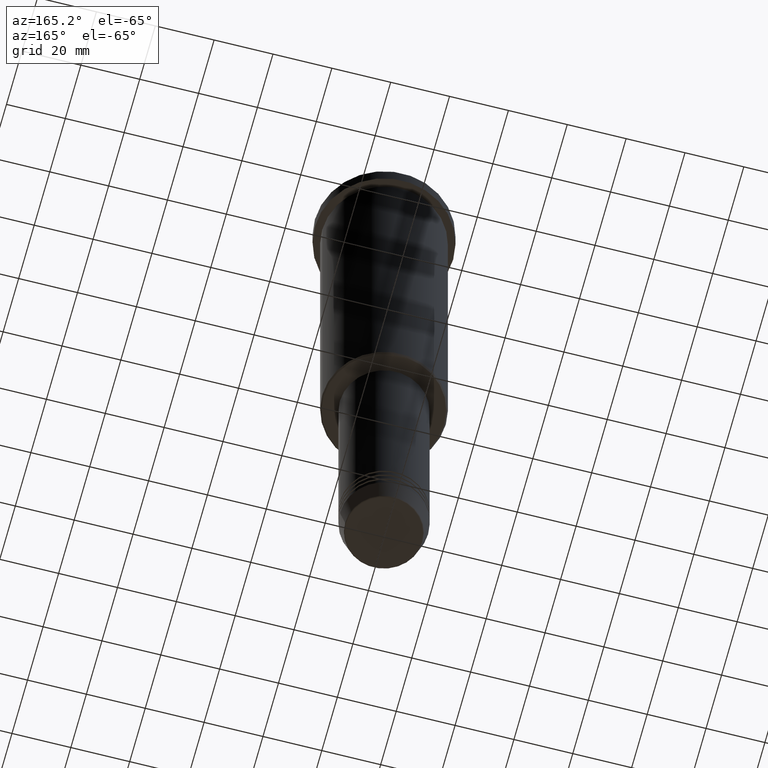
[diagram: clean part render]
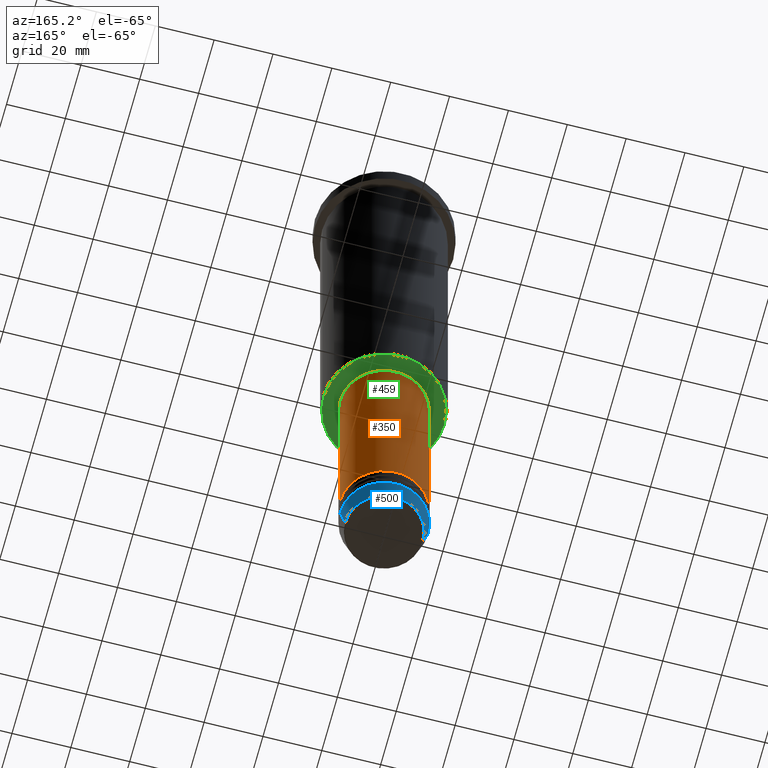
[diagram: same view with three faces highlighted in distinct colors, each labeled with its STEP entity id]
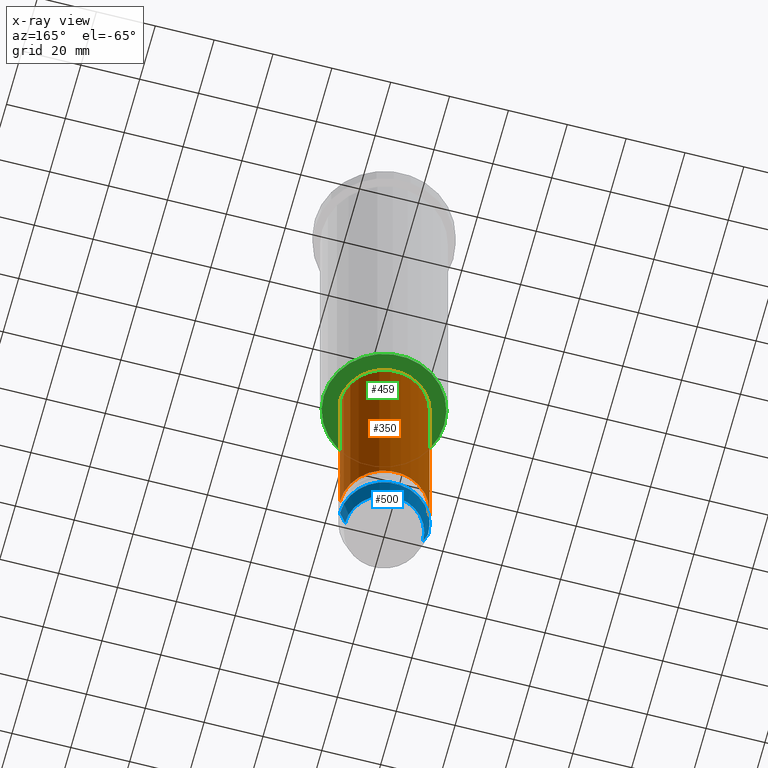
[diagram: x-ray of the same camera — body ghosted, the three highlighted faces saturated]
A machine part, auxiliary view with three faces highlighted in distinct colors.
The next image is the same camera in x-ray (body ghosted, the three faces saturated) — at least one of them is partly hidden behind the body in this view.
Their STEP definitions:

[orange] entity #350 — the highlighted cylindrical surface (partial cylindrical patch) has radius 15 mm, axis along (-0, -0, 1).
#3 = VERTEX_POINT ( 'NONE', #531 ) ;
#43 = ORIENTED_EDGE ( 'NONE', *, *, #675, .F. ) ;
#101 = CIRCLE ( 'NONE', #257, 15.00000000000000000 ) ;
#140 = CARTESIAN_POINT ( 'NONE',  ( 15.00000000000000000, 0.000000000000000000, 0.000000000000000000 ) ) ;
#144 = VECTOR ( 'NONE', #669, 1000.000000000000000 ) ;
#154 = CARTESIAN_POINT ( 'NONE',  ( 15.00000000000000000, 0.000000000000000000, -137.0000000000000000 ) ) ;
#195 = ORIENTED_EDGE ( 'NONE', *, *, #211, .T. ) ;
#211 = EDGE_CURVE ( 'NONE', #3, #1118, #931, .T. ) ;
#225 = LINE ( 'NONE', #140, #599 ) ;
#243 = DIRECTION ( 'NONE',  ( -0.000000000000000000, -0.000000000000000000, 1.000000000000000000 ) ) ;
#250 = CARTESIAN_POINT ( 'NONE',  ( 0.000000000000000000, 0.000000000000000000, 0.000000000000000000 ) ) ;
#257 = AXIS2_PLACEMENT_3D ( 'NONE', #1062, #1134, #874 ) ;
#281 = EDGE_LOOP ( 'NONE', ( #676, #195, #43, #951 ) ) ;
#309 = EDGE_CURVE ( 'NONE', #1054, #3, #694, .T. ) ;
#350 = ADVANCED_FACE ( 'NONE', ( #706 ), #1061, .T. ) ;
#399 = AXIS2_PLACEMENT_3D ( 'NONE', #250, #610, #985 ) ;
#531 = CARTESIAN_POINT ( 'NONE',  ( -15.00000000000000000, 1.836970198721029589E-15, -214.9999999999999716 ) ) ;
#599 = VECTOR ( 'NONE', #243, 1000.000000000000000 ) ;
#610 = DIRECTION ( 'NONE',  ( -0.000000000000000000, -0.000000000000000000, 1.000000000000000000 ) ) ;
#620 = VERTEX_POINT ( 'NONE', #154 ) ;
#669 = DIRECTION ( 'NONE',  ( -0.000000000000000000, -0.000000000000000000, 1.000000000000000000 ) ) ;
#675 = EDGE_CURVE ( 'NONE', #620, #1118, #101, .T. ) ;
#676 = ORIENTED_EDGE ( 'NONE', *, *, #309, .T. ) ;
#694 = CIRCLE ( 'NONE', #841, 15.00000000000000000 ) ;
#706 = FACE_OUTER_BOUND ( 'NONE', #281, .T. ) ;
#797 = CARTESIAN_POINT ( 'NONE',  ( 0.000000000000000000, 0.000000000000000000, -214.9999999999999716 ) ) ;
#841 = AXIS2_PLACEMENT_3D ( 'NONE', #797, #871, #980 ) ;
#859 = CARTESIAN_POINT ( 'NONE',  ( -15.00000000000000000, 1.836970198721029589E-15, 0.000000000000000000 ) ) ;
#871 = DIRECTION ( 'NONE',  ( -0.000000000000000000, -0.000000000000000000, 1.000000000000000000 ) ) ;
#874 = DIRECTION ( 'NONE',  ( 1.000000000000000000, 0.000000000000000000, 0.000000000000000000 ) ) ;
#931 = LINE ( 'NONE', #859, #144 ) ;
#951 = ORIENTED_EDGE ( 'NONE', *, *, #1034, .F. ) ;
#980 = DIRECTION ( 'NONE',  ( 1.000000000000000000, 0.000000000000000000, 0.000000000000000000 ) ) ;
#985 = DIRECTION ( 'NONE',  ( 1.000000000000000000, 0.000000000000000000, 0.000000000000000000 ) ) ;
#1034 = EDGE_CURVE ( 'NONE', #1054, #620, #225, .T. ) ;
#1054 = VERTEX_POINT ( 'NONE', #1060 ) ;
#1060 = CARTESIAN_POINT ( 'NONE',  ( 15.00000000000000000, 0.000000000000000000, -214.9999999999999716 ) ) ;
#1061 = CYLINDRICAL_SURFACE ( 'NONE', #399, 15.00000000000000000 ) ;
#1062 = CARTESIAN_POINT ( 'NONE',  ( 0.000000000000000000, 0.000000000000000000, -137.0000000000000000 ) ) ;
#1102 = CARTESIAN_POINT ( 'NONE',  ( -15.00000000000000000, 1.836970198721029589E-15, -137.0000000000000000 ) ) ;
#1118 = VERTEX_POINT ( 'NONE', #1102 ) ;
#1134 = DIRECTION ( 'NONE',  ( -0.000000000000000000, -0.000000000000000000, 1.000000000000000000 ) ) ;

[blue] entity #500 — the highlighted conical surface has half-angle 15 deg.
#18 = CARTESIAN_POINT ( 'NONE',  ( -15.00000000000000000, 1.836970198721029589E-15, -224.0000000000000000 ) ) ;
#58 = DIRECTION ( 'NONE',  ( -0.000000000000000000, -0.000000000000000000, 1.000000000000000000 ) ) ;
#70 = CARTESIAN_POINT ( 'NONE',  ( -13.22365507213719305, 1.728200442216588583E-15, -230.6294095225512422 ) ) ;
#128 = ORIENTED_EDGE ( 'NONE', *, *, #133, .T. ) ;
#133 = EDGE_CURVE ( 'NONE', #769, #269, #1029, .T. ) ;
#187 = CARTESIAN_POINT ( 'NONE',  ( 13.22365507213719305, 0.000000000000000000, -230.6294095225512422 ) ) ;
#197 = EDGE_CURVE ( 'NONE', #449, #885, #200, .T. ) ;
#200 = CIRCLE ( 'NONE', #713, 15.00000000000000000 ) ;
#237 = CONICAL_SURFACE ( 'NONE', #521, 15.00000000000000000, 0.2617993877991500740 ) ;
#269 = VERTEX_POINT ( 'NONE', #70 ) ;
#300 = FACE_OUTER_BOUND ( 'NONE', #631, .T. ) ;
#319 = ORIENTED_EDGE ( 'NONE', *, *, #1057, .T. ) ;
#341 = LINE ( 'NONE', #780, #447 ) ;
#413 = CARTESIAN_POINT ( 'NONE',  ( 0.000000000000000000, 0.000000000000000000, -230.6294095225512422 ) ) ;
#447 = VECTOR ( 'NONE', #509, 1000.000000000000000 ) ;
#449 = VERTEX_POINT ( 'NONE', #834 ) ;
#496 = DIRECTION ( 'NONE',  ( 1.000000000000000000, 0.000000000000000000, 0.000000000000000000 ) ) ;
#500 = ADVANCED_FACE ( 'NONE', ( #300 ), #237, .T. ) ;
#509 = DIRECTION ( 'NONE',  ( 0.2588190451025213501, 0.000000000000000000, 0.9659258262890680902 ) ) ;
#521 = AXIS2_PLACEMENT_3D ( 'NONE', #572, #655, #666 ) ;
#572 = CARTESIAN_POINT ( 'NONE',  ( 0.000000000000000000, 0.000000000000000000, -224.0000000000000000 ) ) ;
#575 = AXIS2_PLACEMENT_3D ( 'NONE', #413, #58, #496 ) ;
#628 = CARTESIAN_POINT ( 'NONE',  ( -15.00000000000000000, 1.836970198721029589E-15, -224.0000000000000000 ) ) ;
#631 = EDGE_LOOP ( 'NONE', ( #128, #319, #718, #1023 ) ) ;
#655 = DIRECTION ( 'NONE',  ( -0.000000000000000000, -0.000000000000000000, 1.000000000000000000 ) ) ;
#666 = DIRECTION ( 'NONE',  ( 1.000000000000000000, 0.000000000000000000, 0.000000000000000000 ) ) ;
#678 = EDGE_CURVE ( 'NONE', #769, #449, #341, .T. ) ;
#713 = AXIS2_PLACEMENT_3D ( 'NONE', #828, #990, #1120 ) ;
#718 = ORIENTED_EDGE ( 'NONE', *, *, #197, .F. ) ;
#769 = VERTEX_POINT ( 'NONE', #187 ) ;
#780 = CARTESIAN_POINT ( 'NONE',  ( 15.00000000000000000, 0.000000000000000000, -224.0000000000000000 ) ) ;
#828 = CARTESIAN_POINT ( 'NONE',  ( 0.000000000000000000, 0.000000000000000000, -224.0000000000000000 ) ) ;
#834 = CARTESIAN_POINT ( 'NONE',  ( 15.00000000000000000, 0.000000000000000000, -224.0000000000000000 ) ) ;
#885 = VERTEX_POINT ( 'NONE', #18 ) ;
#887 = DIRECTION ( 'NONE',  ( -0.2588190451025213501, 3.169619151431772337E-17, 0.9659258262890680902 ) ) ;
#990 = DIRECTION ( 'NONE',  ( -0.000000000000000000, -0.000000000000000000, 1.000000000000000000 ) ) ;
#1000 = VECTOR ( 'NONE', #887, 1000.000000000000000 ) ;
#1023 = ORIENTED_EDGE ( 'NONE', *, *, #678, .F. ) ;
#1029 = CIRCLE ( 'NONE', #575, 13.22365507213719305 ) ;
#1057 = EDGE_CURVE ( 'NONE', #269, #885, #1161, .T. ) ;
#1120 = DIRECTION ( 'NONE',  ( 1.000000000000000000, 0.000000000000000000, 0.000000000000000000 ) ) ;
#1161 = LINE ( 'NONE', #628, #1000 ) ;

[green] entity #459 — the highlighted planar face has unit normal (0, 0, -1).
#56 = CARTESIAN_POINT ( 'NONE',  ( 0.000000000000000000, 0.000000000000000000, -136.0000000000000000 ) ) ;
#83 = CIRCLE ( 'NONE', #149, 20.50000000000004619 ) ;
#84 = CIRCLE ( 'NONE', #333, 20.50000000000004619 ) ;
#111 = EDGE_LOOP ( 'NONE', ( #151, #1082 ) ) ;
#113 = CARTESIAN_POINT ( 'NONE',  ( 0.000000000000000000, 21.00000000000000000, -136.0000000000000000 ) ) ;
#122 = PLANE ( 'NONE',  #1030 ) ;
#130 = DIRECTION ( 'NONE',  ( 1.000000000000000000, 0.000000000000000000, 0.000000000000000000 ) ) ;
#149 = AXIS2_PLACEMENT_3D ( 'NONE', #324, #1037, #961 ) ;
#151 = ORIENTED_EDGE ( 'NONE', *, *, #1007, .T. ) ;
#171 = EDGE_CURVE ( 'NONE', #788, #986, #255, .T. ) ;
#174 = VERTEX_POINT ( 'NONE', #488 ) ;
#255 = CIRCLE ( 'NONE', #656, 14.49999999999999822 ) ;
#323 = DIRECTION ( 'NONE',  ( -0.000000000000000000, -0.000000000000000000, 1.000000000000000000 ) ) ;
#324 = CARTESIAN_POINT ( 'NONE',  ( 0.000000000000000000, 0.000000000000000000, -136.0000000000000000 ) ) ;
#333 = AXIS2_PLACEMENT_3D ( 'NONE', #56, #781, #411 ) ;
#400 = DIRECTION ( 'NONE',  ( -0.000000000000000000, -0.000000000000000000, 1.000000000000000000 ) ) ;
#411 = DIRECTION ( 'NONE',  ( -1.000000000000000000, 0.000000000000000000, 0.000000000000000000 ) ) ;
#459 = ADVANCED_FACE ( 'NONE', ( #1105, #672 ), #122, .T. ) ;
#475 = DIRECTION ( 'NONE',  ( -1.000000000000000000, 0.000000000000000000, -0.000000000000000000 ) ) ;
#488 = CARTESIAN_POINT ( 'NONE',  ( 20.50000000000004619, 0.000000000000000000, -136.0000000000000000 ) ) ;
#538 = ORIENTED_EDGE ( 'NONE', *, *, #652, .T. ) ;
#614 = CIRCLE ( 'NONE', #1104, 14.49999999999999822 ) ;
#652 = EDGE_CURVE ( 'NONE', #986, #788, #614, .T. ) ;
#656 = AXIS2_PLACEMENT_3D ( 'NONE', #947, #400, #130 ) ;
#672 = FACE_BOUND ( 'NONE', #981, .T. ) ;
#765 = CARTESIAN_POINT ( 'NONE',  ( 14.49999999999999822, 0.000000000000000000, -136.0000000000000000 ) ) ;
#781 = DIRECTION ( 'NONE',  ( 0.000000000000000000, 0.000000000000000000, -1.000000000000000000 ) ) ;
#788 = VERTEX_POINT ( 'NONE', #1074 ) ;
#790 = CARTESIAN_POINT ( 'NONE',  ( 0.000000000000000000, 0.000000000000000000, -136.0000000000000000 ) ) ;
#827 = ORIENTED_EDGE ( 'NONE', *, *, #171, .T. ) ;
#947 = CARTESIAN_POINT ( 'NONE',  ( 0.000000000000000000, 0.000000000000000000, -136.0000000000000000 ) ) ;
#961 = DIRECTION ( 'NONE',  ( -1.000000000000000000, 0.000000000000000000, 0.000000000000000000 ) ) ;
#969 = EDGE_CURVE ( 'NONE', #1100, #174, #83, .T. ) ;
#981 = EDGE_LOOP ( 'NONE', ( #538, #827 ) ) ;
#986 = VERTEX_POINT ( 'NONE', #765 ) ;
#1007 = EDGE_CURVE ( 'NONE', #174, #1100, #84, .T. ) ;
#1014 = DIRECTION ( 'NONE',  ( 0.000000000000000000, 0.000000000000000000, -1.000000000000000000 ) ) ;
#1021 = CARTESIAN_POINT ( 'NONE',  ( -20.50000000000004619, 2.541142108230760635E-15, -136.0000000000000000 ) ) ;
#1030 = AXIS2_PLACEMENT_3D ( 'NONE', #113, #1014, #475 ) ;
#1037 = DIRECTION ( 'NONE',  ( 0.000000000000000000, 0.000000000000000000, -1.000000000000000000 ) ) ;
#1074 = CARTESIAN_POINT ( 'NONE',  ( -14.49999999999999822, 1.775737858763662015E-15, -136.0000000000000000 ) ) ;
#1082 = ORIENTED_EDGE ( 'NONE', *, *, #969, .T. ) ;
#1100 = VERTEX_POINT ( 'NONE', #1021 ) ;
#1104 = AXIS2_PLACEMENT_3D ( 'NONE', #790, #323, #1155 ) ;
#1105 = FACE_OUTER_BOUND ( 'NONE', #111, .T. ) ;
#1155 = DIRECTION ( 'NONE',  ( 1.000000000000000000, 0.000000000000000000, 0.000000000000000000 ) ) ;